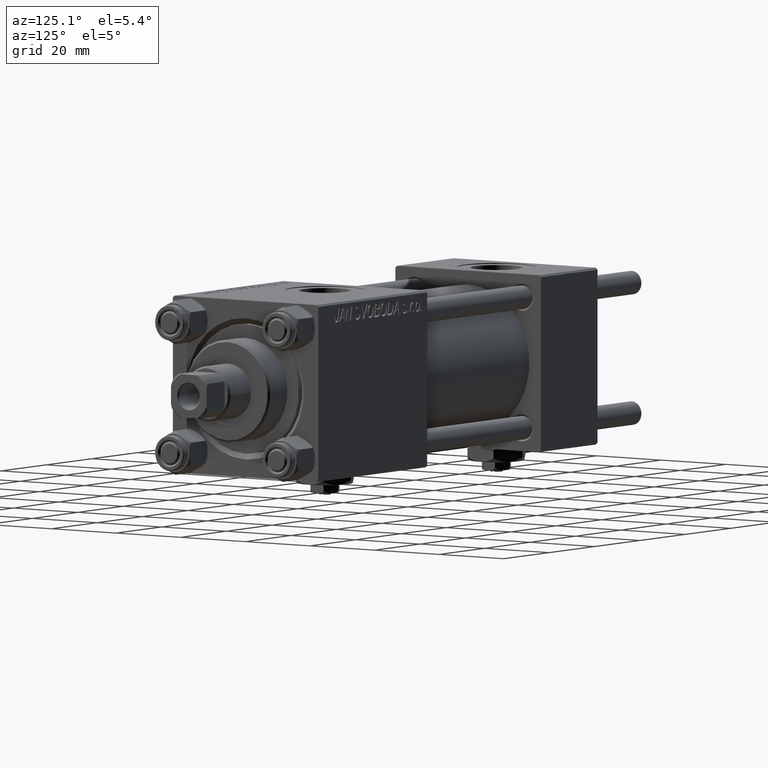
[diagram: clean part render]
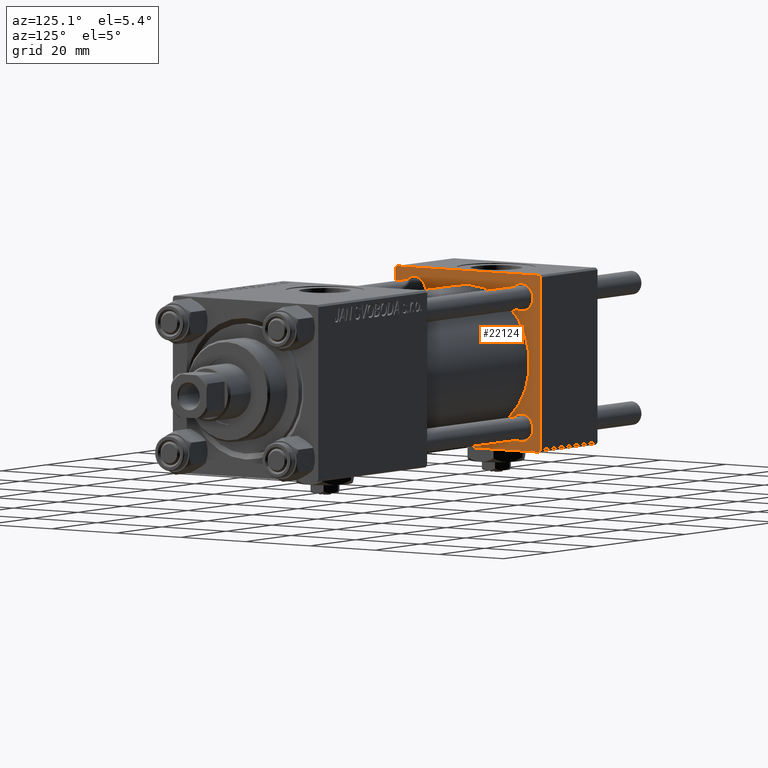
[diagram: same view with one face highlighted and labeled with its STEP entity id]
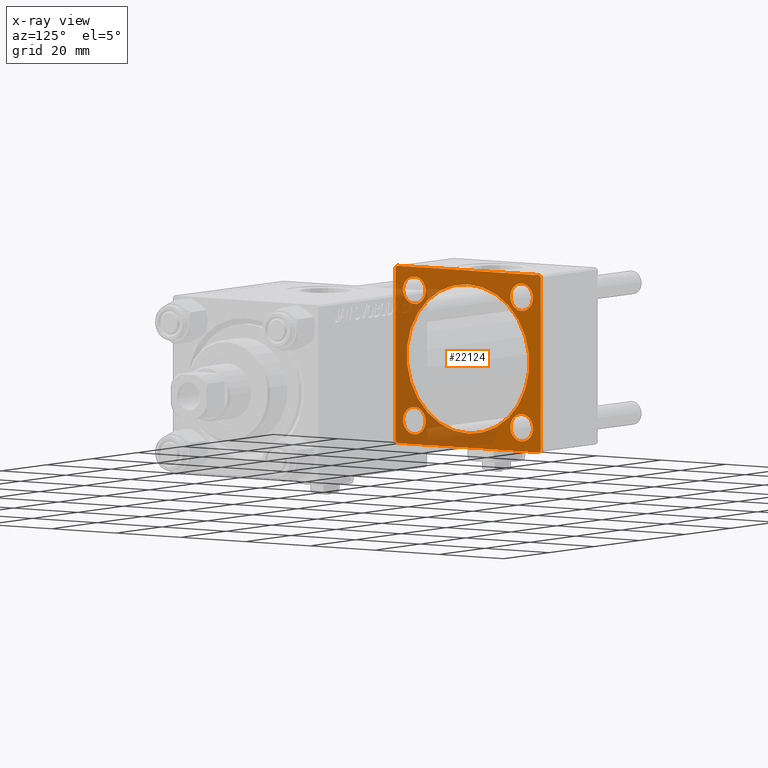
[diagram: x-ray of the same camera — body ghosted, the highlighted face saturated]
A machine part, auxiliary view. The second image highlights one B-rep face of the part: STEP entity #22124.
The next image is the same camera in x-ray: the body ghosted, the highlighted face saturated — about 41% of this face is hidden behind the body in this view.
In plain terms, the highlighted planar face has unit normal (-1, 0, 0).
Its self-contained STEP definition (entity closure, byte-faithful):
#307 = CARTESIAN_POINT ( 'NONE',  ( 25.00000000000000000, 22.50000000000000000, -21.99999999999998224 ) ) ;
#334 = AXIS2_PLACEMENT_3D ( 'NONE', #41470, #8922, #20730 ) ;
#429 = ORIENTED_EDGE ( 'NONE', *, *, #29967, .T. ) ;
#555 = CARTESIAN_POINT ( 'NONE',  ( 25.00000000000000000, -16.59999999999999076, -20.09999999999999787 ) ) ;
#680 = DIRECTION ( 'NONE',  ( 1.000000000000000000, -0.000000000000000000, 0.000000000000000000 ) ) ;
#770 = VECTOR ( 'NONE', #40197, 1000.000000000000000 ) ;
#1378 = EDGE_CURVE ( 'NONE', #5939, #45728, #43090, .T. ) ;
#1455 = CIRCLE ( 'NONE', #30773, 19.00000000000000000 ) ;
#1527 = FACE_BOUND ( 'NONE', #6624, .T. ) ;
#1714 = VERTEX_POINT ( 'NONE', #15716 ) ;
#2152 = ORIENTED_EDGE ( 'NONE', *, *, #16879, .T. ) ;
#2197 = DIRECTION ( 'NONE',  ( 0.000000000000000000, 0.000000000000000000, -1.000000000000000000 ) ) ;
#2226 = VECTOR ( 'NONE', #11330, 1000.000000000000000 ) ;
#2977 = VECTOR ( 'NONE', #21370, 1000.000000000000000 ) ;
#3319 = CARTESIAN_POINT ( 'NONE',  ( 25.00000000000000000, 16.59999999999999787, -16.60000000000000497 ) ) ;
#3561 = CARTESIAN_POINT ( 'NONE',  ( 25.00000000000000000, 22.50000000000000000, -22.49999999999999645 ) ) ;
#3647 = ORIENTED_EDGE ( 'NONE', *, *, #16145, .F. ) ;
#4172 = AXIS2_PLACEMENT_3D ( 'NONE', #26424, #49787, #14360 ) ;
#4207 = VECTOR ( 'NONE', #49389, 1000.000000000000114 ) ;
#4224 = VERTEX_POINT ( 'NONE', #34446 ) ;
#4512 = EDGE_CURVE ( 'NONE', #42552, #19737, #24436, .T. ) ;
#5439 = ORIENTED_EDGE ( 'NONE', *, *, #7207, .F. ) ;
#5442 = CARTESIAN_POINT ( 'NONE',  ( 25.00000000000000000, 0.000000000000000000, 0.000000000000000000 ) ) ;
#5593 = EDGE_LOOP ( 'NONE', ( #429, #2152 ) ) ;
#5784 = VECTOR ( 'NONE', #2197, 1000.000000000000000 ) ;
#5939 = VERTEX_POINT ( 'NONE', #48972 ) ;
#6624 = EDGE_LOOP ( 'NONE', ( #17523, #10431 ) ) ;
#6764 = CARTESIAN_POINT ( 'NONE',  ( 25.00000000000000000, 16.59999999999999787, 16.60000000000000497 ) ) ;
#7010 = DIRECTION ( 'NONE',  ( -1.000000000000000000, 0.000000000000000000, -0.000000000000000000 ) ) ;
#7207 = EDGE_CURVE ( 'NONE', #42552, #4224, #50558, .T. ) ;
#7805 = CARTESIAN_POINT ( 'NONE',  ( 25.00000000000000000, 0.000000000000000000, 19.00000000000000000 ) ) ;
#8061 = CARTESIAN_POINT ( 'NONE',  ( 25.00000000000000000, -22.50000000000000000, 22.00000000000000000 ) ) ;
#8230 = EDGE_CURVE ( 'NONE', #32704, #35685, #35632, .T. ) ;
#8777 = ORIENTED_EDGE ( 'NONE', *, *, #45545, .T. ) ;
#8922 = DIRECTION ( 'NONE',  ( -1.000000000000000000, 0.000000000000000000, -0.000000000000000000 ) ) ;
#9481 = VERTEX_POINT ( 'NONE', #51476 ) ;
#9865 = CIRCLE ( 'NONE', #29994, 3.499999999999989342 ) ;
#10431 = ORIENTED_EDGE ( 'NONE', *, *, #30100, .T. ) ;
#10611 = EDGE_LOOP ( 'NONE', ( #8777, #40335 ) ) ;
#11281 = VECTOR ( 'NONE', #31634, 1000.000000000000000 ) ;
#11330 = DIRECTION ( 'NONE',  ( 0.000000000000000000, -1.000000000000000000, -7.709882115452476934E-17 ) ) ;
#12402 = EDGE_CURVE ( 'NONE', #25763, #19737, #41331, .T. ) ;
#12561 = AXIS2_PLACEMENT_3D ( 'NONE', #28743, #680, #32419 ) ;
#12650 = CARTESIAN_POINT ( 'NONE',  ( 25.00000000000000000, 21.99999999999999289, 22.50000000000000355 ) ) ;
#14360 = DIRECTION ( 'NONE',  ( -0.000000000000000000, 0.000000000000000000, 1.000000000000000000 ) ) ;
#14372 = CARTESIAN_POINT ( 'NONE',  ( 25.00000000000000000, 16.59999999999999787, 20.10000000000000853 ) ) ;
#14897 = CARTESIAN_POINT ( 'NONE',  ( 25.00000000000000000, 21.99999999999999289, -22.49999999999999645 ) ) ;
#15716 = CARTESIAN_POINT ( 'NONE',  ( 25.00000000000000000, -22.50000000000000000, -21.99999999999997158 ) ) ;
#15886 = CIRCLE ( 'NONE', #12561, 19.00000000000000000 ) ;
#15889 = ORIENTED_EDGE ( 'NONE', *, *, #12402, .F. ) ;
#16143 = ORIENTED_EDGE ( 'NONE', *, *, #51782, .F. ) ;
#16145 = EDGE_CURVE ( 'NONE', #24176, #51698, #1455, .T. ) ;
#16172 = DIRECTION ( 'NONE',  ( 0.000000000000000000, 0.000000000000000000, 1.000000000000000000 ) ) ;
#16331 = AXIS2_PLACEMENT_3D ( 'NONE', #3319, #27710, #23238 ) ;
#16653 = AXIS2_PLACEMENT_3D ( 'NONE', #36661, #35895, #51917 ) ;
#16855 = AXIS2_PLACEMENT_3D ( 'NONE', #6764, #7010, #39034 ) ;
#16879 = EDGE_CURVE ( 'NONE', #35333, #31819, #49252, .T. ) ;
#17523 = ORIENTED_EDGE ( 'NONE', *, *, #8230, .T. ) ;
#17919 = LINE ( 'NONE', #26580, #5784 ) ;
#18025 = CARTESIAN_POINT ( 'NONE',  ( 25.00000000000000000, 2.326828918379970970E-15, -19.00000000000000000 ) ) ;
#18546 = EDGE_CURVE ( 'NONE', #45728, #38915, #49414, .T. ) ;
#18924 = CARTESIAN_POINT ( 'NONE',  ( 25.00000000000000000, 16.59999999999999787, -20.10000000000000853 ) ) ;
#19737 = VERTEX_POINT ( 'NONE', #36427 ) ;
#20116 = DIRECTION ( 'NONE',  ( -1.000000000000000000, 0.000000000000000000, -0.000000000000000000 ) ) ;
#20157 = DIRECTION ( 'NONE',  ( -1.000000000000000000, 0.000000000000000000, -0.000000000000000000 ) ) ;
#20220 = CIRCLE ( 'NONE', #37850, 3.500000000000003109 ) ;
#20380 = EDGE_CURVE ( 'NONE', #38915, #1714, #17919, .T. ) ;
#20586 = ORIENTED_EDGE ( 'NONE', *, *, #43701, .T. ) ;
#20730 = DIRECTION ( 'NONE',  ( 0.000000000000000000, 0.000000000000000000, 1.000000000000000000 ) ) ;
#20855 = CIRCLE ( 'NONE', #16653, 3.499999999999989342 ) ;
#21370 = DIRECTION ( 'NONE',  ( 0.000000000000000000, 0.000000000000000000, -1.000000000000000000 ) ) ;
#21441 = FACE_BOUND ( 'NONE', #29772, .T. ) ;
#21656 = LINE ( 'NONE', #42909, #46742 ) ;
#21783 = DIRECTION ( 'NONE',  ( -1.000000000000000000, 0.000000000000000000, -0.000000000000000000 ) ) ;
#22124 = ADVANCED_FACE ( 'NONE', ( #50569, #1527, #30362, #42179, #21441, #50051 ), #45848, .F. ) ;
#23218 = AXIS2_PLACEMENT_3D ( 'NONE', #31977, #20157, #27514 ) ;
#23238 = DIRECTION ( 'NONE',  ( 0.000000000000000000, 0.000000000000000000, 1.000000000000000000 ) ) ;
#23521 = ORIENTED_EDGE ( 'NONE', *, *, #1378, .T. ) ;
#24168 = VECTOR ( 'NONE', #28929, 999.9999999999998863 ) ;
#24176 = VERTEX_POINT ( 'NONE', #7805 ) ;
#24350 = DIRECTION ( 'NONE',  ( 0.000000000000000000, 0.000000000000000000, 1.000000000000000000 ) ) ;
#24436 = LINE ( 'NONE', #307, #770 ) ;
#24955 = DIRECTION ( 'NONE',  ( 0.000000000000000000, 0.000000000000000000, 1.000000000000000000 ) ) ;
#25070 = EDGE_CURVE ( 'NONE', #9481, #32766, #20855, .T. ) ;
#25268 = CIRCLE ( 'NONE', #16855, 3.500000000000003109 ) ;
#25388 = DIRECTION ( 'NONE',  ( 1.000000000000000000, -0.000000000000000000, 0.000000000000000000 ) ) ;
#25763 = VERTEX_POINT ( 'NONE', #41789 ) ;
#26424 = CARTESIAN_POINT ( 'NONE',  ( 25.00000000000000000, 0.000000000000000000, 0.000000000000000000 ) ) ;
#26580 = CARTESIAN_POINT ( 'NONE',  ( 25.00000000000000000, -22.50000000000000000, 22.50000000000000000 ) ) ;
#26994 = EDGE_CURVE ( 'NONE', #25763, #5939, #41505, .T. ) ;
#27474 = CARTESIAN_POINT ( 'NONE',  ( 25.00000000000000000, 16.59999999999999787, -16.60000000000000497 ) ) ;
#27514 = DIRECTION ( 'NONE',  ( 0.000000000000000000, 0.000000000000000000, 1.000000000000000000 ) ) ;
#27710 = DIRECTION ( 'NONE',  ( -1.000000000000000000, 0.000000000000000000, -0.000000000000000000 ) ) ;
#28326 = CARTESIAN_POINT ( 'NONE',  ( 25.00000000000000000, -16.59999999999999076, 13.10000000000001386 ) ) ;
#28421 = CARTESIAN_POINT ( 'NONE',  ( 25.00000000000000000, -22.50000000000000000, 22.00000000000000000 ) ) ;
#28743 = CARTESIAN_POINT ( 'NONE',  ( 25.00000000000000000, 0.000000000000000000, 0.000000000000000000 ) ) ;
#28877 = CARTESIAN_POINT ( 'NONE',  ( 25.00000000000000000, -21.99999999999997868, 22.50000000000000000 ) ) ;
#28929 = DIRECTION ( 'NONE',  ( -0.000000000000000000, -0.7071067811865525687, -0.7071067811865425767 ) ) ;
#29151 = CARTESIAN_POINT ( 'NONE',  ( 25.00000000000000000, -16.59999999999999076, -16.60000000000000853 ) ) ;
#29204 = AXIS2_PLACEMENT_3D ( 'NONE', #50353, #38016, #34074 ) ;
#29517 = CARTESIAN_POINT ( 'NONE',  ( 25.00000000000000000, 22.50000000000000000, 22.50000000000000355 ) ) ;
#29772 = EDGE_LOOP ( 'NONE', ( #3647, #16143 ) ) ;
#29967 = EDGE_CURVE ( 'NONE', #31819, #35333, #25268, .T. ) ;
#29994 = AXIS2_PLACEMENT_3D ( 'NONE', #29151, #21783, #24955 ) ;
#30048 = CARTESIAN_POINT ( 'NONE',  ( 25.00000000000000000, 16.59999999999999787, -13.10000000000000142 ) ) ;
#30100 = EDGE_CURVE ( 'NONE', #35685, #32704, #20220, .T. ) ;
#30362 = FACE_BOUND ( 'NONE', #10611, .T. ) ;
#30773 = AXIS2_PLACEMENT_3D ( 'NONE', #5442, #25388, #24350 ) ;
#31634 = DIRECTION ( 'NONE',  ( 0.000000000000000000, -1.000000000000000000, -2.312964634635742957E-16 ) ) ;
#31819 = VERTEX_POINT ( 'NONE', #50441 ) ;
#31977 = CARTESIAN_POINT ( 'NONE',  ( 25.00000000000000000, 16.59999999999999787, 16.60000000000000497 ) ) ;
#32419 = DIRECTION ( 'NONE',  ( 0.000000000000000000, 0.000000000000000000, 1.000000000000000000 ) ) ;
#32704 = VERTEX_POINT ( 'NONE', #18924 ) ;
#32766 = VERTEX_POINT ( 'NONE', #555 ) ;
#32878 = EDGE_CURVE ( 'NONE', #47956, #45429, #50633, .T. ) ;
#34074 = DIRECTION ( 'NONE',  ( 0.000000000000000000, 0.000000000000000000, 1.000000000000000000 ) ) ;
#34446 = CARTESIAN_POINT ( 'NONE',  ( 25.00000000000000000, -21.99999999999997158, -22.50000000000000711 ) ) ;
#34620 = ORIENTED_EDGE ( 'NONE', *, *, #25070, .T. ) ;
#35011 = ORIENTED_EDGE ( 'NONE', *, *, #43048, .T. ) ;
#35333 = VERTEX_POINT ( 'NONE', #14372 ) ;
#35632 = CIRCLE ( 'NONE', #16331, 3.500000000000003109 ) ;
#35685 = VERTEX_POINT ( 'NONE', #30048 ) ;
#35895 = DIRECTION ( 'NONE',  ( -1.000000000000000000, 0.000000000000000000, -0.000000000000000000 ) ) ;
#36427 = CARTESIAN_POINT ( 'NONE',  ( 25.00000000000000000, 22.50000000000000000, -21.99999999999996803 ) ) ;
#36661 = CARTESIAN_POINT ( 'NONE',  ( 25.00000000000000000, -16.59999999999999076, -16.60000000000000853 ) ) ;
#37850 = AXIS2_PLACEMENT_3D ( 'NONE', #27474, #20116, #16172 ) ;
#38016 = DIRECTION ( 'NONE',  ( -1.000000000000000000, 0.000000000000000000, -0.000000000000000000 ) ) ;
#38915 = VERTEX_POINT ( 'NONE', #8061 ) ;
#39034 = DIRECTION ( 'NONE',  ( 0.000000000000000000, 0.000000000000000000, 1.000000000000000000 ) ) ;
#39428 = CARTESIAN_POINT ( 'NONE',  ( 25.00000000000000000, 22.50000000000000000, 22.50000000000000355 ) ) ;
#40197 = DIRECTION ( 'NONE',  ( -0.000000000000000000, 0.7071067811865426878, 0.7071067811865524577 ) ) ;
#40335 = ORIENTED_EDGE ( 'NONE', *, *, #32878, .T. ) ;
#40918 = CARTESIAN_POINT ( 'NONE',  ( 25.00000000000000000, -16.59999999999999076, 20.10000000000000142 ) ) ;
#41331 = LINE ( 'NONE', #29517, #2977 ) ;
#41470 = CARTESIAN_POINT ( 'NONE',  ( 25.00000000000000000, -16.59999999999999076, 16.60000000000000853 ) ) ;
#41505 = LINE ( 'NONE', #12650, #4207 ) ;
#41789 = CARTESIAN_POINT ( 'NONE',  ( 25.00000000000000000, 22.50000000000000000, 21.99999999999999645 ) ) ;
#42179 = FACE_BOUND ( 'NONE', #5593, .T. ) ;
#42456 = EDGE_LOOP ( 'NONE', ( #5439, #50732, #15889, #43618, #23521, #44146, #44960, #20586 ) ) ;
#42552 = VERTEX_POINT ( 'NONE', #14897 ) ;
#42655 = DIRECTION ( 'NONE',  ( 0.000000000000000000, 0.7071067811865426878, -0.7071067811865524577 ) ) ;
#42909 = CARTESIAN_POINT ( 'NONE',  ( 25.00000000000000000, -21.99999999999998579, -22.50000000000000711 ) ) ;
#43048 = EDGE_CURVE ( 'NONE', #32766, #9481, #9865, .T. ) ;
#43090 = LINE ( 'NONE', #39428, #2226 ) ;
#43618 = ORIENTED_EDGE ( 'NONE', *, *, #26994, .T. ) ;
#43701 = EDGE_CURVE ( 'NONE', #1714, #4224, #21656, .T. ) ;
#44146 = ORIENTED_EDGE ( 'NONE', *, *, #18546, .T. ) ;
#44739 = EDGE_LOOP ( 'NONE', ( #35011, #34620 ) ) ;
#44960 = ORIENTED_EDGE ( 'NONE', *, *, #20380, .T. ) ;
#45429 = VERTEX_POINT ( 'NONE', #28326 ) ;
#45545 = EDGE_CURVE ( 'NONE', #45429, #47956, #51829, .T. ) ;
#45728 = VERTEX_POINT ( 'NONE', #28877 ) ;
#45848 = PLANE ( 'NONE',  #4172 ) ;
#46742 = VECTOR ( 'NONE', #42655, 1000.000000000000000 ) ;
#47956 = VERTEX_POINT ( 'NONE', #40918 ) ;
#48972 = CARTESIAN_POINT ( 'NONE',  ( 25.00000000000000000, 21.99999999999999289, 22.50000000000000355 ) ) ;
#49252 = CIRCLE ( 'NONE', #23218, 3.500000000000003109 ) ;
#49389 = DIRECTION ( 'NONE',  ( 0.000000000000000000, -0.7071067811865474617, 0.7071067811865474617 ) ) ;
#49414 = LINE ( 'NONE', #28421, #24168 ) ;
#49787 = DIRECTION ( 'NONE',  ( -1.000000000000000000, 0.000000000000000000, -0.000000000000000000 ) ) ;
#50051 = FACE_OUTER_BOUND ( 'NONE', #42456, .T. ) ;
#50353 = CARTESIAN_POINT ( 'NONE',  ( 25.00000000000000000, -16.59999999999999076, 16.60000000000000853 ) ) ;
#50441 = CARTESIAN_POINT ( 'NONE',  ( 25.00000000000000000, 16.59999999999999787, 13.10000000000000142 ) ) ;
#50558 = LINE ( 'NONE', #3561, #11281 ) ;
#50569 = FACE_BOUND ( 'NONE', #44739, .T. ) ;
#50633 = CIRCLE ( 'NONE', #334, 3.499999999999992895 ) ;
#50732 = ORIENTED_EDGE ( 'NONE', *, *, #4512, .T. ) ;
#51476 = CARTESIAN_POINT ( 'NONE',  ( 25.00000000000000000, -16.59999999999999076, -13.10000000000001741 ) ) ;
#51698 = VERTEX_POINT ( 'NONE', #18025 ) ;
#51782 = EDGE_CURVE ( 'NONE', #51698, #24176, #15886, .T. ) ;
#51829 = CIRCLE ( 'NONE', #29204, 3.499999999999992895 ) ;
#51917 = DIRECTION ( 'NONE',  ( 0.000000000000000000, 0.000000000000000000, 1.000000000000000000 ) ) ;